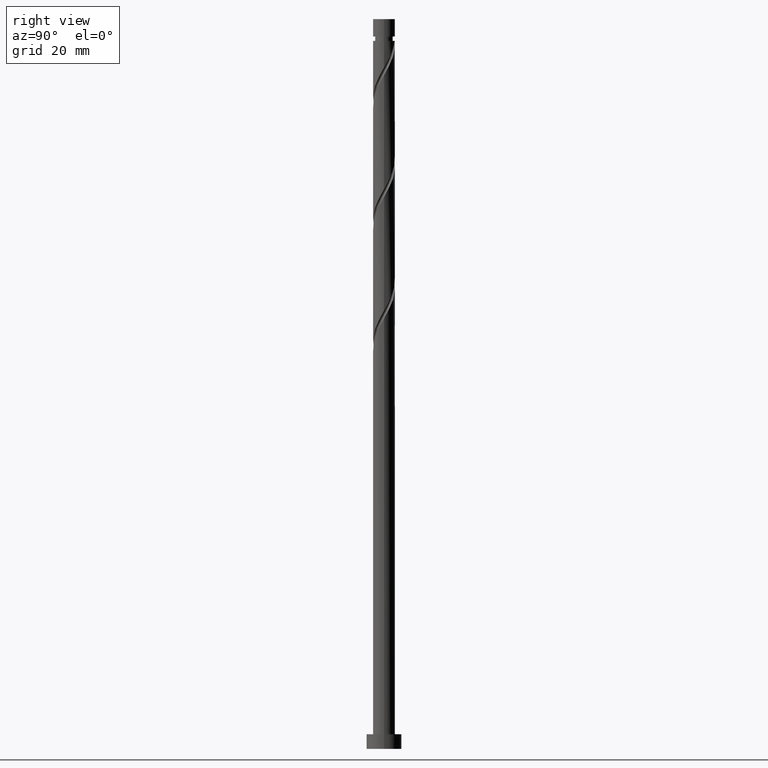
[diagram: clean part render]
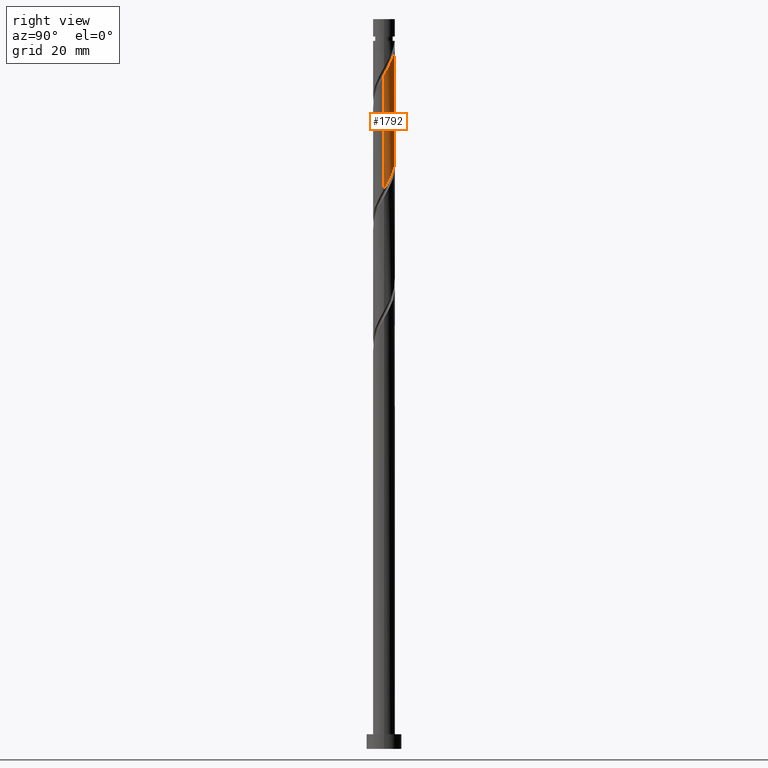
[diagram: same view with one face highlighted and labeled with its STEP entity id]
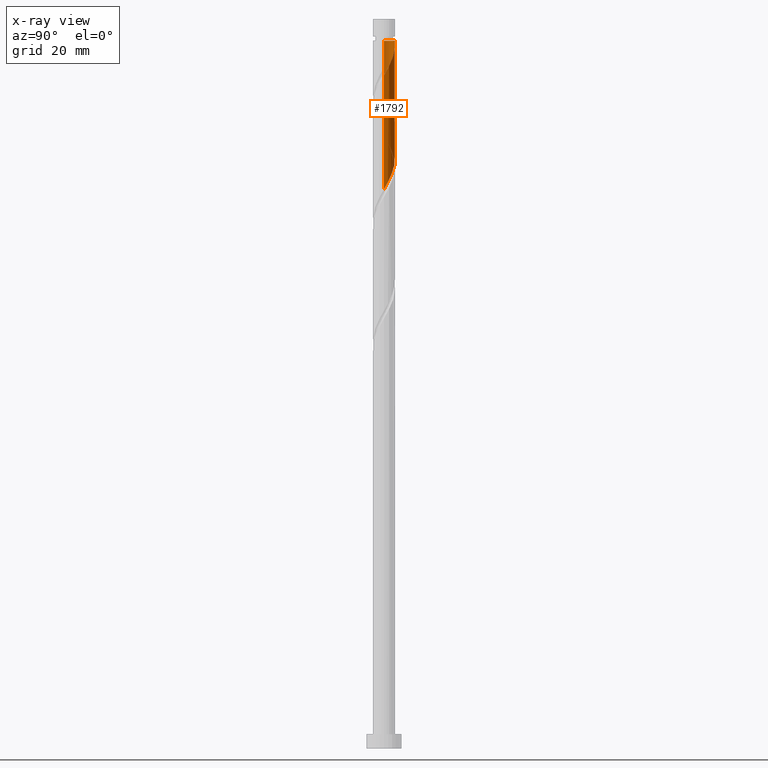
[diagram: x-ray of the same camera — body ghosted, the highlighted face saturated]
A machine part, right view. The second image highlights one B-rep face of the part: STEP entity #1792.
The next image is the same camera in x-ray: the body ghosted, the highlighted face saturated — about 0% of this face is hidden behind the body in this view.
In plain terms, the highlighted cylindrical surface (edge-blend (fillet) strip) has radius 3.75 mm, axis along (-0, -0, -1).
Its self-contained STEP definition (entity closure, byte-faithful):
#10 = CARTESIAN_POINT ( 'NONE',  ( -3.414519813292434591, 1.615822413786171419, 209.6867853262979793 ) ) ;
#18 = CARTESIAN_POINT ( 'NONE',  ( -3.171564136060946559, 2.000920021103287372, 208.8855032750158784 ) ) ;
#19 = VERTEX_POINT ( 'NONE', #1005 ) ;
#24 = CARTESIAN_POINT ( 'NONE',  ( 2.995544862262065511, 2.255927963871039221, 196.0649904545030040 ) ) ;
#28 = CYLINDRICAL_SURFACE ( 'NONE', #1503, 3.750000000000000000 ) ;
#35 = CARTESIAN_POINT ( 'NONE',  ( -1.484316325817624849, 3.473705899061064972, 204.8790930186055164 ) ) ;
#39 = CARTESIAN_POINT ( 'NONE',  ( 0.000000000000000000, 0.000000000000000000, 250.0000000000000000 ) ) ;
#45 = CARTESIAN_POINT ( 'NONE',  ( 3.269464109641844196, 1.892202965863925668, 195.2637084032210169 ) ) ;
#129 = CARTESIAN_POINT ( 'NONE',  ( 3.558255750386916549, 1.183771943762178536, 232.9239648134773972 ) ) ;
#143 = CARTESIAN_POINT ( 'NONE',  ( 1.192466366171776482, 3.584389989078958560, 200.0714007109133092 ) ) ;
#155 = DIRECTION ( 'NONE',  ( -1.000000000000000000, 0.000000000000000000, 0.000000000000000000 ) ) ;
#227 = VERTEX_POINT ( 'NONE', #288 ) ;
#261 = CARTESIAN_POINT ( 'NONE',  ( 2.928608458829464745, 2.386017628420404435, 235.3278109673236145 ) ) ;
#268 = CARTESIAN_POINT ( 'NONE',  ( 3.701991687481390514, 0.7517214737381885392, 232.1226827621952964 ) ) ;
#279 =( BOUNDED_CURVE ( )  B_SPLINE_CURVE ( 2, ( #1402, #1607, #1427, #1454, #1146, #10, #18, #1716, #434, #1153, #294, #35, #1733, #1028, #893, #1296, #1162, #143, #1009, #442, #580, #881, #24, #45, #1443, #1314, #717, #283, #1464 ),
 .UNSPECIFIED., .F., .T. ) 
 B_SPLINE_CURVE_WITH_KNOTS ( ( 3, 2, 2, 2, 2, 2, 2, 2, 2, 2, 2, 2, 2, 2, 3 ),
 ( 0.4295271625973833829, 0.4326923076923077094, 0.4423076923076922906, 0.4519230769230769273, 0.4615384615384615641, 0.4711538461538461453, 0.4807692307692307820, 0.4903846153846153633, 0.5000000000000000000, 0.5096153846153845812, 0.5192307692307692735, 0.5288461538461538547, 0.5384615384615384359, 0.5480769230769231282, 0.5545271625973832164 ),
 .UNSPECIFIED. ) 
 CURVE ( )  GEOMETRIC_REPRESENTATION_ITEM ( )  RATIONAL_B_SPLINE_CURVE ( ( 0.9061636035682825163, 0.9069090390690711656, 0.9090909090909277124, 0.9024626128164311423, 0.9090909090909277124, 0.9024626128164311423, 0.9090909090909277124, 0.9024626128164311423, 0.9090909090909277124, 0.9024626128164311423, 0.9090909090909277124, 0.9024626128164311423, 0.9090909090909277124, 0.9024626128164311423, 0.9090909090909277124, 0.9024626128164311423, 0.9090909090909277124, 0.9024626128164311423, 0.9090909090909277124, 0.9024626128164311423, 0.9090909090909277124, 0.9024626128164311423, 0.9090909090909277124, 0.9024626128164311423, 0.9090909090909277124, 0.9024626128164311423, 0.9090909090909277124, 0.9046444828382878001, 0.9061636035682824053 ) ) 
 REPRESENTATION_ITEM ( '' )  );
#283 = CARTESIAN_POINT ( 'NONE',  ( 3.749999999999999112, 0.3047116445139227414, 192.3236387087689252 ) ) ;
#288 = CARTESIAN_POINT ( 'NONE',  ( -0.7462405778299819881, 3.675000000000002931, 242.5393494288620673 ) ) ;
#291 = AXIS2_PLACEMENT_3D ( 'NONE', #1264, #568, #995 ) ;
#294 = CARTESIAN_POINT ( 'NONE',  ( -1.878406675807777981, 3.245626035186549796, 205.6803750698876456 ) ) ;
#328 = CARTESIAN_POINT ( 'NONE',  ( 3.750000000000000000, 5.070063162784191100E-15, 191.7839379714205847 ) ) ;
#399 = CARTESIAN_POINT ( 'NONE',  ( 3.171564136060952777, 2.000920021103289148, 234.5265289160415421 ) ) ;
#434 = CARTESIAN_POINT ( 'NONE',  ( -2.600552742313694488, 2.701781899866218861, 207.2829391724517052 ) ) ;
#439 = EDGE_CURVE ( 'NONE', #19, #759, #1813, .T. ) ;
#442 = CARTESIAN_POINT ( 'NONE',  ( 2.015616132092366897, 3.194858249799102268, 198.4688366083492213 ) ) ;
#445 = ORIENTED_EDGE ( 'NONE', *, *, #1323, .F. ) ;
#462 = VERTEX_POINT ( 'NONE', #540 ) ;
#484 = VECTOR ( 'NONE', #1732, 1000.000000000000000 ) ;
#499 = FACE_OUTER_BOUND ( 'NONE', #722, .T. ) ;
#540 = CARTESIAN_POINT ( 'NONE',  ( -3.749999999999982681, 0.000000000000000000, 242.5393494288620104 ) ) ;
#545 = CARTESIAN_POINT ( 'NONE',  ( 1.878406675807783754, 3.245626035186555125, 237.7316571211697180 ) ) ;
#563 = EDGE_CURVE ( 'NONE', #462, #227, #1112, .T. ) ;
#568 = DIRECTION ( 'NONE',  ( -0.000000000000000000, -0.000000000000000000, -1.000000000000000000 ) ) ;
#580 = CARTESIAN_POINT ( 'NONE',  ( 2.368620873487329082, 2.907255605838626966, 197.6675545570671773 ) ) ;
#600 = ORIENTED_EDGE ( 'NONE', *, *, #1551, .F. ) ;
#666 = VECTOR ( 'NONE', #989, 1000.000000000000000 ) ;
#705 = CARTESIAN_POINT ( 'NONE',  ( 0.6098725562511212450, 3.727986466363866658, 240.1355032750158216 ) ) ;
#712 = CARTESIAN_POINT ( 'NONE',  ( 2.272497025797937997, 3.017546171312039061, 236.9303750698876740 ) ) ;
#717 = CARTESIAN_POINT ( 'NONE',  ( 3.700805247676850485, 0.6054258986593495928, 192.8598622493747996 ) ) ;
#722 = EDGE_LOOP ( 'NONE', ( #1767, #1708, #445, #600, #873 ) ) ;
#759 = VERTEX_POINT ( 'NONE', #328 ) ;
#776 = CARTESIAN_POINT ( 'NONE',  ( -3.749999999999999556, 4.337222174653141511E-16, 212.6172713047538707 ) ) ;
#841 = CARTESIAN_POINT ( 'NONE',  ( 1.047094441034376544, 3.600846182712468480, 239.3342212237338629 ) ) ;
#847 = CARTESIAN_POINT ( 'NONE',  ( 3.414519813292441697, 1.615822413786171863, 233.7252468647594696 ) ) ;
#873 = ORIENTED_EDGE ( 'NONE', *, *, #563, .T. ) ;
#881 = CARTESIAN_POINT ( 'NONE',  ( 2.721625614882288602, 2.619652961878153885, 196.8662725057851048 ) ) ;
#893 = CARTESIAN_POINT ( 'NONE',  ( -0.1549288833814793653, 3.746798238642448986, 202.4752468647594696 ) ) ;
#989 = DIRECTION ( 'NONE',  ( -0.000000000000000000, -0.000000000000000000, -1.000000000000000000 ) ) ;
#995 = DIRECTION ( 'NONE',  ( -1.000000000000000000, 0.000000000000000000, 0.000000000000000000 ) ) ;
#1002 =( BOUNDED_CURVE ( )  B_SPLINE_CURVE ( 2, ( #1819, #1104, #1673, #268, #129, #847, #399, #261, #1419, #712, #545, #1395, #841, #705, #1113, #1681, #1544 ),
 .UNSPECIFIED., .F., .T. ) 
 B_SPLINE_CURVE_WITH_KNOTS ( ( 3, 2, 2, 2, 2, 2, 2, 2, 3 ),
 ( 0.6795271625973833274, 0.6826923076923077094, 0.6923076923076922906, 0.7019230769230769829, 0.7115384615384616751, 0.7211538461538462563, 0.7307692307692309486, 0.7403846153846156408, 0.7500000000000002220 ),
 .UNSPECIFIED. ) 
 CURVE ( )  GEOMETRIC_REPRESENTATION_ITEM ( )  RATIONAL_B_SPLINE_CURVE ( ( 0.9061636035682887336, 0.9069090390690774939, 0.9090909090909340406, 0.9024626128164374705, 0.9090909090909340406, 0.9024626128164374705, 0.9090909090909340406, 0.9024626128164374705, 0.9090909090909340406, 0.9024626128164374705, 0.9090909090909340406, 0.9024626128164374705, 0.9090909090909340406, 0.9024626128164374705, 0.9090909090909340406, 0.9024626128164373595, 0.9090909090909341517 ) ) 
 REPRESENTATION_ITEM ( '' )  );
#1005 = CARTESIAN_POINT ( 'NONE',  ( 3.750000000000005773, -1.570373545995091893E-15, 230.7947608863034930 ) ) ;
#1009 = CARTESIAN_POINT ( 'NONE',  ( 1.604041249132072799, 3.389624119439029304, 199.2701186596312368 ) ) ;
#1019 = VERTEX_POINT ( 'NONE', #776 ) ;
#1028 = CARTESIAN_POINT ( 'NONE',  ( -0.6098725562511179143, 3.727986466363861329, 203.2765289160415136 ) ) ;
#1081 = DIRECTION ( 'NONE',  ( -0.000000000000000000, -0.000000000000000000, -1.000000000000000000 ) ) ;
#1104 = CARTESIAN_POINT ( 'NONE',  ( 3.750000000000006217, 0.1491492387628814420, 231.0589318019364669 ) ) ;
#1112 = CIRCLE ( 'NONE', #291, 3.749999999999982681 ) ;
#1113 = CARTESIAN_POINT ( 'NONE',  ( 0.1549288833814836119, 3.746798238642456536, 240.9367853262979793 ) ) ;
#1146 = CARTESIAN_POINT ( 'NONE',  ( -3.558255750386909000, 1.183771943762180312, 210.4880673775799949 ) ) ;
#1152 = CARTESIAN_POINT ( 'NONE',  ( -3.750000000000000000, 0.000000000000000000, 250.0000000000000000 ) ) ;
#1153 = CARTESIAN_POINT ( 'NONE',  ( -2.272497025797931780, 3.017546171312037284, 206.4816571211697180 ) ) ;
#1162 = CARTESIAN_POINT ( 'NONE',  ( 0.7462405778299676662, 3.674999999999998490, 200.8726827621953532 ) ) ;
#1264 = CARTESIAN_POINT ( 'NONE',  ( 0.000000000000000000, 0.000000000000000000, 242.5393494288620104 ) ) ;
#1273 = CARTESIAN_POINT ( 'NONE',  ( 3.750000000000000000, 4.592425496802573972E-16, 250.0000000000000000 ) ) ;
#1296 = CARTESIAN_POINT ( 'NONE',  ( 0.3000147894881596278, 3.765610010921039752, 201.6739648134773404 ) ) ;
#1299 = EDGE_CURVE ( 'NONE', #19, #227, #1002, .T. ) ;
#1314 = CARTESIAN_POINT ( 'NONE',  ( 3.627293234367513719, 1.054785011351620172, 193.6611443006569004 ) ) ;
#1323 = EDGE_CURVE ( 'NONE', #1019, #759, #279, .T. ) ;
#1395 = CARTESIAN_POINT ( 'NONE',  ( 1.484316325817629068, 3.473705899061069413, 238.5329391724517905 ) ) ;
#1402 = CARTESIAN_POINT ( 'NONE',  ( -3.749999999999999556, 4.337222174653141511E-16, 212.6172713047538707 ) ) ;
#1419 = CARTESIAN_POINT ( 'NONE',  ( 2.600552742313700705, 2.701781899866222858, 236.1290930186056016 ) ) ;
#1427 = CARTESIAN_POINT ( 'NONE',  ( -3.738154474233785329, 0.2978273438855562616, 212.0906314801439976 ) ) ;
#1443 = CARTESIAN_POINT ( 'NONE',  ( 3.448378672004678513, 1.473493988607773808, 194.4624263519389444 ) ) ;
#1454 = CARTESIAN_POINT ( 'NONE',  ( -3.701991687481383408, 0.7517214737381887613, 211.2893494288620104 ) ) ;
#1464 = CARTESIAN_POINT ( 'NONE',  ( 3.750000000000000000, 5.070063162784191100E-15, 191.7839379714205847 ) ) ;
#1503 = AXIS2_PLACEMENT_3D ( 'NONE', #39, #1081, #155 ) ;
#1544 = CARTESIAN_POINT ( 'NONE',  ( -0.7462405778299819881, 3.675000000000002931, 242.5393494288620673 ) ) ;
#1551 = EDGE_CURVE ( 'NONE', #462, #1019, #1715, .T. ) ;
#1607 = CARTESIAN_POINT ( 'NONE',  ( -3.750000000000000000, 0.1491492387628871041, 212.3531003891209252 ) ) ;
#1673 = CARTESIAN_POINT ( 'NONE',  ( 3.738154474233792879, 0.2978273438855535415, 231.3214007109133377 ) ) ;
#1681 = CARTESIAN_POINT ( 'NONE',  ( -0.3000147894881678434, 3.765610010921046857, 241.7380673775799949 ) ) ;
#1708 = ORIENTED_EDGE ( 'NONE', *, *, #439, .T. ) ;
#1715 = LINE ( 'NONE', #1152, #484 ) ;
#1716 = CARTESIAN_POINT ( 'NONE',  ( -2.928608458829458971, 2.386017628420402215, 208.0842212237338629 ) ) ;
#1732 = DIRECTION ( 'NONE',  ( -0.000000000000000000, -0.000000000000000000, -1.000000000000000000 ) ) ;
#1733 = CARTESIAN_POINT ( 'NONE',  ( -1.047094441034371659, 3.600846182712463150, 204.0778109673235008 ) ) ;
#1767 = ORIENTED_EDGE ( 'NONE', *, *, #1299, .F. ) ;
#1792 = ADVANCED_FACE ( 'NONE', ( #499 ), #28, .T. ) ;
#1813 = LINE ( 'NONE', #1273, #666 ) ;
#1819 = CARTESIAN_POINT ( 'NONE',  ( 3.750000000000005773, -1.570373545995091893E-15, 230.7947608863034930 ) ) ;